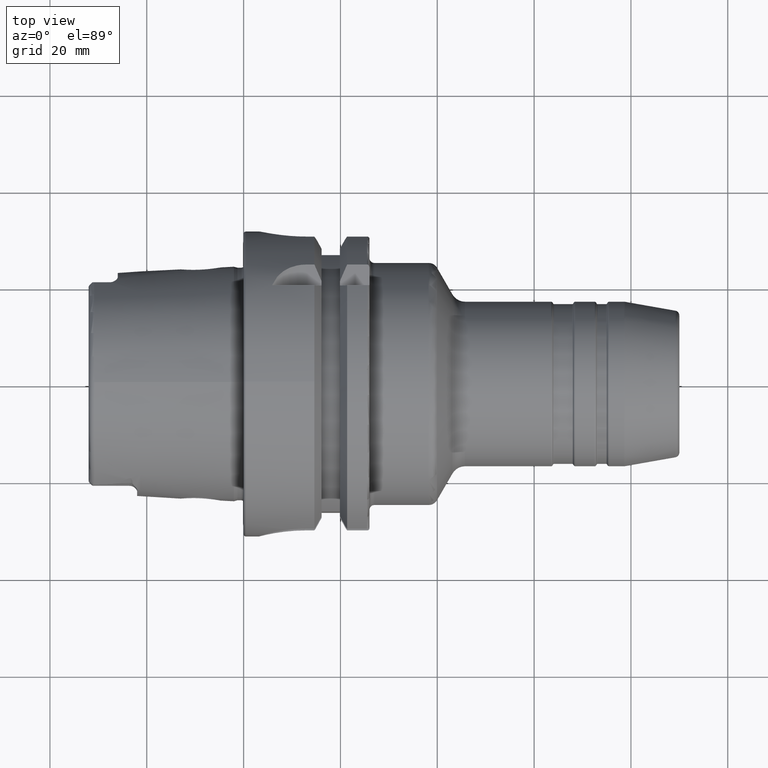
[diagram: clean part render]
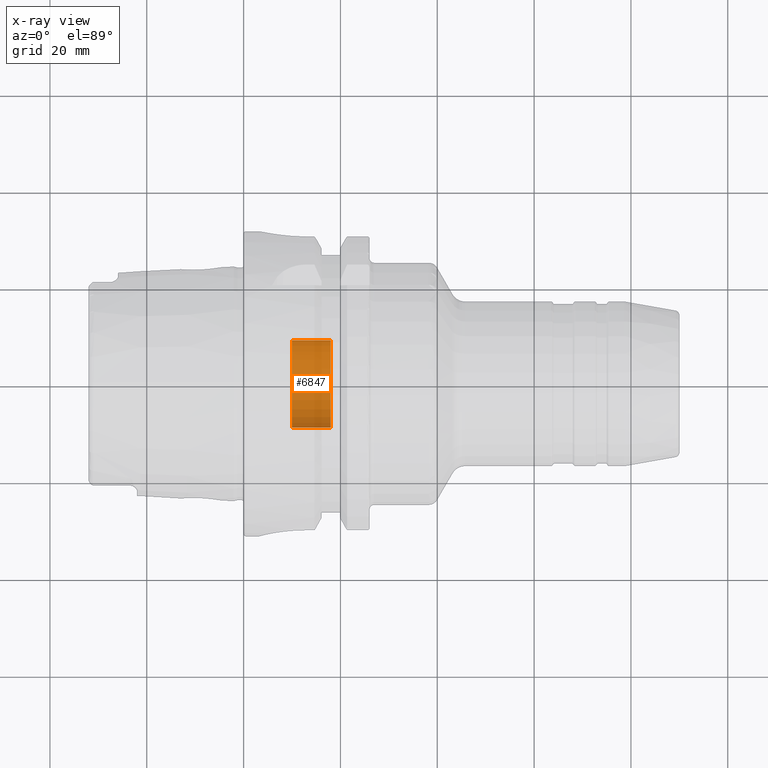
[diagram: x-ray — body ghosted, one internal face saturated and labeled with its STEP entity id]
A machine part, top view, then the same camera in x-ray: the body is ghosted and one INTERNAL B-rep face — a face not visible from any outside direction — is saturated and labeled: STEP entity #6847.
In plain terms, the highlighted cylindrical surface (partial cylindrical patch) has radius 9 mm, axis along (-1, 0, 0).
Its self-contained STEP definition (entity closure, byte-faithful):
#6782=CARTESIAN_POINT('',(1.E1,0.E0,0.E0));
#6783=DIRECTION('',(1.E0,0.E0,0.E0));
#6784=DIRECTION('',(0.E0,-1.E0,0.E0));
#6785=AXIS2_PLACEMENT_3D('',#6782,#6783,#6784);
#6792=DIRECTION('',(1.E0,0.E0,0.E0));
#6793=VECTOR('',#6792,8.E0);
#6794=CARTESIAN_POINT('',(1.E1,-9.E0,0.E0));
#6795=LINE('',#6794,#6793);
#6796=DIRECTION('',(1.E0,0.E0,0.E0));
#6797=VECTOR('',#6796,8.E0);
#6798=CARTESIAN_POINT('',(1.E1,9.E0,0.E0));
#6799=LINE('',#6798,#6797);
#6805=CARTESIAN_POINT('',(1.8E1,0.E0,0.E0));
#6806=DIRECTION('',(-1.E0,0.E0,0.E0));
#6807=DIRECTION('',(0.E0,1.E0,0.E0));
#6808=AXIS2_PLACEMENT_3D('',#6805,#6806,#6807);
#6820=CARTESIAN_POINT('',(1.8E1,9.E0,0.E0));
#6821=CARTESIAN_POINT('',(1.8E1,-9.E0,0.E0));
#6822=VERTEX_POINT('',#6820);
#6823=VERTEX_POINT('',#6821);
#6824=CARTESIAN_POINT('',(1.E1,9.E0,0.E0));
#6825=CARTESIAN_POINT('',(1.E1,-9.E0,0.E0));
#6826=VERTEX_POINT('',#6824);
#6827=VERTEX_POINT('',#6825);
#6832=CARTESIAN_POINT('',(2.376268102482E1,0.E0,0.E0));
#6833=DIRECTION('',(-1.E0,0.E0,0.E0));
#6834=DIRECTION('',(0.E0,1.E0,0.E0));
#6835=AXIS2_PLACEMENT_3D('',#6832,#6833,#6834);
#6836=CYLINDRICAL_SURFACE('',#6835,9.E0);
#6838=ORIENTED_EDGE('',*,*,#6837,.T.);
#6840=ORIENTED_EDGE('',*,*,#6839,.T.);
#6842=ORIENTED_EDGE('',*,*,#6841,.T.);
#6844=ORIENTED_EDGE('',*,*,#6843,.F.);
#6845=EDGE_LOOP('',(#6838,#6840,#6842,#6844));
#6846=FACE_OUTER_BOUND('',#6845,.F.);
#6847=ADVANCED_FACE('',(#6846),#6836,.F.);
#6786=CIRCLE('',#6785,9.E0);
#6809=CIRCLE('',#6808,9.E0);
#6837=EDGE_CURVE('',#6827,#6826,#6786,.T.);
#6839=EDGE_CURVE('',#6826,#6822,#6799,.T.);
#6841=EDGE_CURVE('',#6822,#6823,#6809,.T.);
#6843=EDGE_CURVE('',#6827,#6823,#6795,.T.);